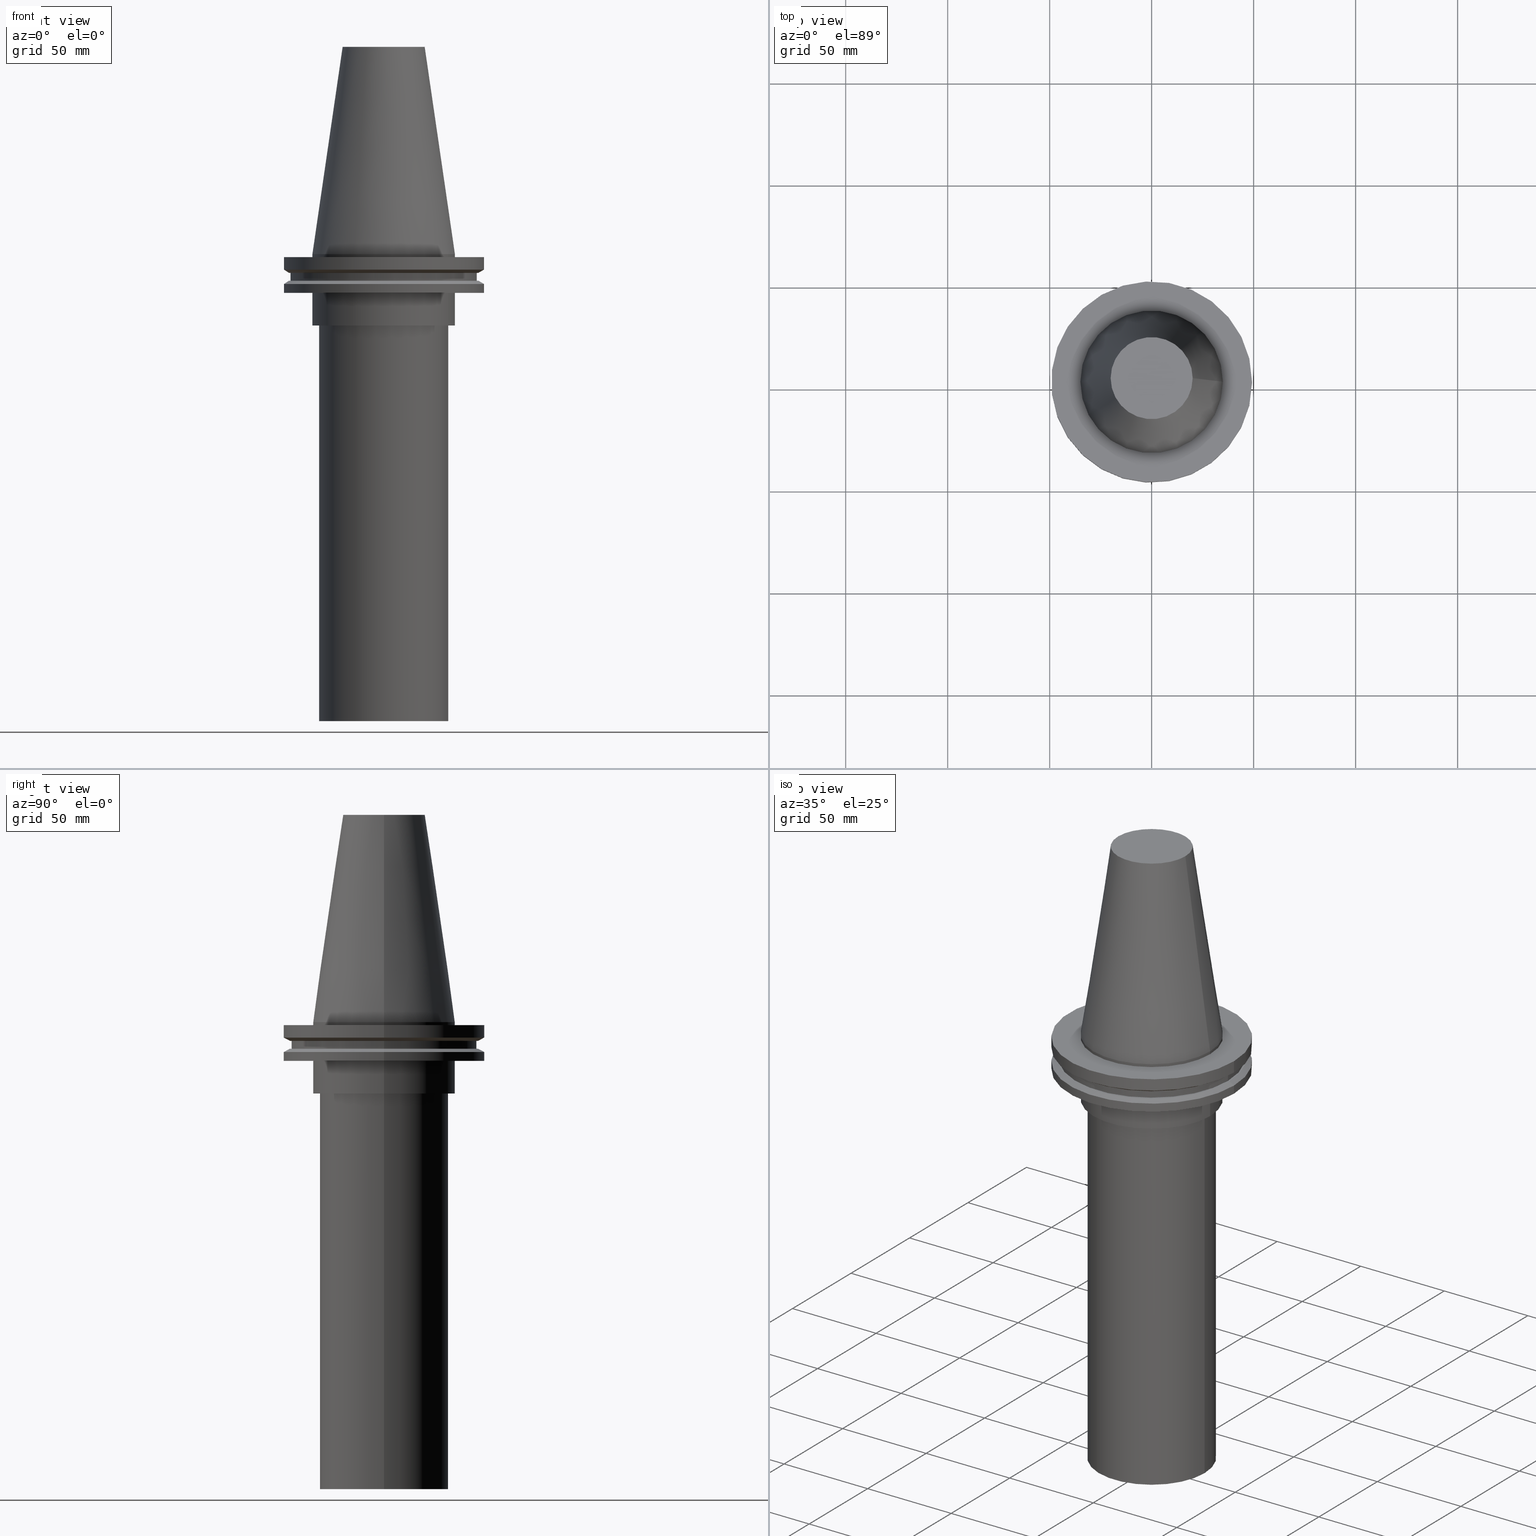
[diagram: canonical four-view strip — front | top / right | iso, engineering-drawing reading convention]
A machine part, canonical four-view strip (front | top / right | iso — engineering-drawing reading convention). The complete STEP part file that produces these views, byte-faithful:
ISO-10303-21;
HEADER;
FILE_DESCRIPTION (( 'STEP AP203' ),
    '1' );
FILE_NAME ('11.326.666.stp',
    '2022-03-09T14:54:01',
    ( '' ),
    ( '' ),
    'SwSTEP 2.0',
    'SolidWorks 2021',
    '' );
FILE_SCHEMA (( 'CONFIG_CONTROL_DESIGN' ));
ENDSEC;

DATA;
#1 = CALENDAR_DATE ( 2022, 9, 3 ) ;
#2 = FACE_OUTER_BOUND ( 'NONE', #136, .T. ) ;
#3 = PLANE ( 'NONE',  #220 ) ;
#4 = DATE_AND_TIME ( #1, #42 ) ;
#5 = VERTEX_POINT ( 'NONE', #182 ) ;
#6 = DIRECTION ( 'NONE',  ( -1.000000000000000000, 0.000000000000000000, -0.000000000000000000 ) ) ;
#7 = CARTESIAN_POINT ( 'NONE',  ( 0.000000000000000000, 0.000000000000000000, -13.05499999999999794 ) ) ;
#8 = VERTEX_POINT ( 'NONE', #242 ) ;
#9 = DIRECTION ( 'NONE',  ( 1.000000000000000000, 0.000000000000000000, 0.000000000000000000 ) ) ;
#10 = FACE_OUTER_BOUND ( 'NONE', #38, .T. ) ;
#11 = ORIENTED_EDGE ( 'NONE', *, *, #85, .F. ) ;
#12 = CIRCLE ( 'NONE', #310, 34.92499999999999005 ) ;
#13 = CARTESIAN_POINT ( 'NONE',  ( 0.000000000000000000, 49.21499999999998920, -19.04999999999999716 ) ) ;
#14 = DIRECTION ( 'NONE',  ( 1.000000000000000000, 0.000000000000000000, 0.000000000000000000 ) ) ;
#15 = FACE_OUTER_BOUND ( 'NONE', #340, .T. ) ;
#16 = ADVANCED_FACE ( 'NONE', ( #148 ), #353, .F. ) ;
#17 = CLOSED_SHELL ( 'NONE', ( #45, #16, #316, #264, #269, #215, #386, #117, #286, #255, #149, #342, #249, #199, #238, #293 ) ) ;
#18 = DIRECTION ( 'NONE',  ( -0.000000000000000000, -0.000000000000000000, 1.000000000000000000 ) ) ;
#19 = FACE_BOUND ( 'NONE', #380, .T. ) ;
#20 = DIRECTION ( 'NONE',  ( -0.000000000000000000, -0.000000000000000000, 1.000000000000000000 ) ) ;
#21 = PLANE ( 'NONE',  #295 ) ;
#22 = UNCERTAINTY_MEASURE_WITH_UNIT (LENGTH_MEASURE( 1.000000000000000082E-05 ), #61, 'distance_accuracy_value', 'NONE');
#23 = AXIS2_PLACEMENT_3D ( 'NONE', #260, #390, #118 ) ;
#24 = EDGE_LOOP ( 'NONE', ( #197 ) ) ;
#25 = EDGE_CURVE ( 'NONE', #292, #292, #99, .T. ) ;
#26 = CARTESIAN_POINT ( 'NONE',  ( 0.000000000000000000, 0.000000000000000000, 101.5999999999999943 ) ) ;
#27 = APPROVAL_STATUS ( 'not_yet_approved' ) ;
#28 = VERTEX_POINT ( 'NONE', #32 ) ;
#29 = CARTESIAN_POINT ( 'NONE',  ( 0.000000000000000000, 0.000000000000000000, -14.65761014474876944 ) ) ;
#30 = CC_DESIGN_PERSON_AND_ORGANIZATION_ASSIGNMENT ( #232, #123, ( #170 ) ) ;
#31 = SECURITY_CLASSIFICATION_LEVEL ( 'unclassified' ) ;
#32 = CARTESIAN_POINT ( 'NONE',  ( 45.64500000000000313, 0.000000000000000000, -9.204999999999991189 ) ) ;
#33 = DIRECTION ( 'NONE',  ( 0.000000000000000000, 0.000000000000000000, -1.000000000000000000 ) ) ;
#34 = CARTESIAN_POINT ( 'NONE',  ( 31.63500000000000512, 0.000000000000000000, -35.00000000000000000 ) ) ;
#35 = APPROVAL_PERSON_ORGANIZATION ( #100, #154, #216 ) ;
#36 = CC_DESIGN_DATE_AND_TIME_ASSIGNMENT ( #4, #235, ( #170 ) ) ;
#37 = CARTESIAN_POINT ( 'NONE',  ( 0.000000000000000000, 0.000000000000000000, -228.9999999999999716 ) ) ;
#38 = EDGE_LOOP ( 'NONE', ( #193 ) ) ;
#39 = DIRECTION ( 'NONE',  ( -0.000000000000000000, -0.000000000000000000, 1.000000000000000000 ) ) ;
#40 = CYLINDRICAL_SURFACE ( 'NONE', #156, 34.92499999999999716 ) ;
#41 = PLANE ( 'NONE',  #166 ) ;
#42 = LOCAL_TIME ( 8, 54, 1.000000000000000000, #157 ) ;
#43 = APPLICATION_PROTOCOL_DEFINITION ( 'international standard', 'config_control_design', 1994, #110 ) ;
#44 = ORIENTED_EDGE ( 'NONE', *, *, #59, .F. ) ;
#45 = ADVANCED_FACE ( 'NONE', ( #86, #208 ), #58, .T. ) ;
#46 = DIRECTION ( 'NONE',  ( -0.000000000000000000, -0.000000000000000000, 1.000000000000000000 ) ) ;
#47 = DIRECTION ( 'NONE',  ( 1.000000000000000000, 0.000000000000000000, 0.000000000000000000 ) ) ;
#48 = PRODUCT ( '11.326.666', '11.326.666', '', ( #140 ) ) ;
#49 = CARTESIAN_POINT ( 'NONE',  ( 0.000000000000000000, 0.000000000000000000, -19.04999999999999716 ) ) ;
#50 = PRODUCT_DEFINITION_FORMATION_WITH_SPECIFIED_SOURCE ( 'ANY', '', #48, .NOT_KNOWN. ) ;
#51 = APPROVAL_STATUS ( 'not_yet_approved' ) ;
#52 = AXIS2_PLACEMENT_3D ( 'NONE', #57, #177, #201 ) ;
#53 = CARTESIAN_POINT ( 'NONE',  ( 0.000000000000000000, 31.63500000000000512, -228.9999999999999716 ) ) ;
#54 = EDGE_LOOP ( 'NONE', ( #167 ) ) ;
#55 = DATE_AND_TIME ( #116, #176 ) ;
#56 = DIRECTION ( 'NONE',  ( 1.000000000000000000, 0.000000000000000000, 0.000000000000000000 ) ) ;
#57 = CARTESIAN_POINT ( 'NONE',  ( 0.000000000000000000, 0.000000000000000000, 0.000000000000000000 ) ) ;
#58 = CONICAL_SURFACE ( 'NONE', #52, 34.92499999999999005, 0.1448138465474119452 ) ;
#59 = EDGE_CURVE ( 'NONE', #371, #371, #302, .T. ) ;
#60 = COORDINATED_UNIVERSAL_TIME_OFFSET ( 6, 0, .BEHIND. ) ;
#61 =( LENGTH_UNIT ( ) NAMED_UNIT ( * ) SI_UNIT ( .MILLI., .METRE. ) );
#62 = DIRECTION ( 'NONE',  ( 1.000000000000000000, 0.000000000000000000, 0.000000000000000000 ) ) ;
#63 = VERTEX_POINT ( 'NONE', #160 ) ;
#64 = CC_DESIGN_PERSON_AND_ORGANIZATION_ASSIGNMENT ( #184, #366, ( #50 ) ) ;
#65 = AXIS2_PLACEMENT_3D ( 'NONE', #383, #376, #343 ) ;
#66 = CALENDAR_DATE ( 2022, 9, 3 ) ;
#67 = DIRECTION ( 'NONE',  ( 1.000000000000000000, 0.000000000000000000, 0.000000000000000000 ) ) ;
#68 = DATE_AND_TIME ( #331, #105 ) ;
#69 = VERTEX_POINT ( 'NONE', #209 ) ;
#70 = CONICAL_SURFACE ( 'NONE', #321, 46.43919780457007818, 1.047197551196575205 ) ;
#71 = EDGE_LOOP ( 'NONE', ( #351 ) ) ;
#72 = FACE_OUTER_BOUND ( 'NONE', #24, .T. ) ;
#73 = ORIENTED_EDGE ( 'NONE', *, *, #25, .F. ) ;
#74 = ORIENTED_EDGE ( 'NONE', *, *, #355, .F. ) ;
#75 = DIRECTION ( 'NONE',  ( 0.000000000000000000, -0.000000000000000000, 1.000000000000000000 ) ) ;
#76 = CIRCLE ( 'NONE', #111, 45.64500000000000313 ) ;
#77 = DIRECTION ( 'NONE',  ( -0.000000000000000000, -0.000000000000000000, 1.000000000000000000 ) ) ;
#78 = DIRECTION ( 'NONE',  ( -0.000000000000000000, -0.000000000000000000, 1.000000000000000000 ) ) ;
#79 = CC_DESIGN_APPROVAL ( #173, ( #170 ) ) ;
#80 = AXIS2_PLACEMENT_3D ( 'NONE', #289, #389, #90 ) ;
#81 = ORIENTED_EDGE ( 'NONE', *, *, #274, .F. ) ;
#82 = DIRECTION ( 'NONE',  ( -0.000000000000000000, -0.000000000000000000, 1.000000000000000000 ) ) ;
#83 = DIRECTION ( 'NONE',  ( 0.000000000000000000, -0.000000000000000000, 1.000000000000000000 ) ) ;
#84 = DIRECTION ( 'NONE',  ( 0.000000000000000000, -0.000000000000000000, 1.000000000000000000 ) ) ;
#85 = EDGE_CURVE ( 'NONE', #88, #88, #89, .T. ) ;
#86 = FACE_BOUND ( 'NONE', #221, .T. ) ;
#87 = PLANE ( 'NONE',  #203 ) ;
#88 = VERTEX_POINT ( 'NONE', #365 ) ;
#89 = CIRCLE ( 'NONE', #254, 34.92499999999999716 ) ;
#90 = DIRECTION ( 'NONE',  ( 1.000000000000000000, 0.000000000000000000, 0.000000000000000000 ) ) ;
#91 = PERSON_AND_ORGANIZATION ( #317, #336 ) ;
#92 = CARTESIAN_POINT ( 'NONE',  ( 34.92499999999999005, 0.000000000000000000, -1.499999999999987566 ) ) ;
#93 = DATE_AND_TIME ( #66, #308 ) ;
#94 = FACE_OUTER_BOUND ( 'NONE', #277, .T. ) ;
#95 = PERSON_AND_ORGANIZATION ( #317, #336 ) ;
#96 = FACE_OUTER_BOUND ( 'NONE', #305, .T. ) ;
#97 = CARTESIAN_POINT ( 'NONE',  ( 0.000000000000000000, 45.64500000000000313, -13.05499999999999794 ) ) ;
#98 =( GEOMETRIC_REPRESENTATION_CONTEXT ( 3 ) GLOBAL_UNCERTAINTY_ASSIGNED_CONTEXT ( ( #22 ) ) GLOBAL_UNIT_ASSIGNED_CONTEXT ( ( #61, #296, #158 ) ) REPRESENTATION_CONTEXT ( 'NONE', 'WORKASPACE' ) );
#99 = CIRCLE ( 'NONE', #23, 20.10819343178871321 ) ;
#100 = PERSON_AND_ORGANIZATION ( #317, #336 ) ;
#101 = DIRECTION ( 'NONE',  ( -0.000000000000000000, -0.000000000000000000, 1.000000000000000000 ) ) ;
#102 = CC_DESIGN_DATE_AND_TIME_ASSIGNMENT ( #297, #290, ( #181 ) ) ;
#103 = DIRECTION ( 'NONE',  ( 1.000000000000000000, 0.000000000000000000, 0.000000000000000000 ) ) ;
#104 = EDGE_LOOP ( 'NONE', ( #108 ) ) ;
#105 = LOCAL_TIME ( 8, 54, 1.000000000000000000, #391 ) ;
#106 = ORIENTED_EDGE ( 'NONE', *, *, #300, .T. ) ;
#107 = CARTESIAN_POINT ( 'NONE',  ( 0.000000000000000000, 0.000000000000000000, 101.5999999999999943 ) ) ;
#108 = ORIENTED_EDGE ( 'NONE', *, *, #324, .T. ) ;
#109 = DIRECTION ( 'NONE',  ( 0.000000000000000000, -0.000000000000000000, 1.000000000000000000 ) ) ;
#110 = APPLICATION_CONTEXT ( 'configuration controlled 3d designs of mechanical parts and assemblies' ) ;
#111 = AXIS2_PLACEMENT_3D ( 'NONE', #349, #46, #9 ) ;
#112 = DIRECTION ( 'NONE',  ( 1.000000000000000000, 0.000000000000000000, 0.000000000000000000 ) ) ;
#113 = ORIENTED_EDGE ( 'NONE', *, *, #145, .F. ) ;
#114 = APPROVAL_PERSON_ORGANIZATION ( #95, #138, #241 ) ;
#115 = CIRCLE ( 'NONE', #281, 31.63500000000000512 ) ;
#116 = CALENDAR_DATE ( 2022, 9, 3 ) ;
#117 = ADVANCED_FACE ( 'NONE', ( #126, #2 ), #237, .F. ) ;
#118 = DIRECTION ( 'NONE',  ( 1.000000000000000000, 0.000000000000000000, 0.000000000000000000 ) ) ;
#119 = PERSON_AND_ORGANIZATION ( #317, #336 ) ;
#120 = CARTESIAN_POINT ( 'NONE',  ( 34.92499999999999716, 0.000000000000000000, -19.04999999999999716 ) ) ;
#121 = DIRECTION ( 'NONE',  ( 1.000000000000000000, 0.000000000000000000, 0.000000000000000000 ) ) ;
#122 = AXIS2_PLACEMENT_3D ( 'NONE', #26, #125, #62 ) ;
#123 = PERSON_AND_ORGANIZATION_ROLE ( 'creator' ) ;
#124 = MANIFOLD_SOLID_BREP ( 'CKB', #17 ) ;
#125 = DIRECTION ( 'NONE',  ( -0.000000000000000000, -0.000000000000000000, 1.000000000000000000 ) ) ;
#126 = FACE_BOUND ( 'NONE', #139, .T. ) ;
#127 = FACE_OUTER_BOUND ( 'NONE', #382, .T. ) ;
#128 = VERTEX_POINT ( 'NONE', #327 ) ;
#129 = CC_DESIGN_SECURITY_CLASSIFICATION ( #181, ( #50 ) ) ;
#130 = DIRECTION ( 'NONE',  ( 0.000000000000000000, 0.000000000000000000, -1.000000000000000000 ) ) ;
#131 = DIRECTION ( 'NONE',  ( -0.000000000000000000, -0.000000000000000000, 1.000000000000000000 ) ) ;
#132 = EDGE_CURVE ( 'NONE', #268, #268, #287, .T. ) ;
#133 = CARTESIAN_POINT ( 'NONE',  ( 0.000000000000000000, 0.000000000000000000, 101.5999999999999943 ) ) ;
#134 = CYLINDRICAL_SURFACE ( 'NONE', #189, 31.63500000000000512 ) ;
#135 = CARTESIAN_POINT ( 'NONE',  ( 0.000000000000000000, 0.000000000000000000, -7.602389855251287187 ) ) ;
#136 = EDGE_LOOP ( 'NONE', ( #344 ) ) ;
#137 = FACE_OUTER_BOUND ( 'NONE', #311, .T. ) ;
#138 = APPROVAL ( #230, 'UNSPECIFIED' ) ;
#139 = EDGE_LOOP ( 'NONE', ( #152 ) ) ;
#140 = MECHANICAL_CONTEXT ( 'NONE', #110, 'mechanical' ) ;
#141 = CYLINDRICAL_SURFACE ( 'NONE', #259, 45.64500000000000313 ) ;
#142 = CARTESIAN_POINT ( 'NONE',  ( 0.000000000000000000, 0.000000000000000000, 0.000000000000000000 ) ) ;
#143 = ORIENTED_EDGE ( 'NONE', *, *, #204, .F. ) ;
#144 = CIRCLE ( 'NONE', #364, 45.64500000000000313 ) ;
#145 = EDGE_CURVE ( 'NONE', #239, #239, #243, .T. ) ;
#146 = CYLINDRICAL_SURFACE ( 'NONE', #393, 49.21499999999998920 ) ;
#147 = DIRECTION ( 'NONE',  ( 1.000000000000000000, 0.000000000000000000, 0.000000000000000000 ) ) ;
#148 = FACE_OUTER_BOUND ( 'NONE', #357, .T. ) ;
#149 = ADVANCED_FACE ( 'NONE', ( #346, #309 ), #70, .T. ) ;
#150 = AXIS2_PLACEMENT_3D ( 'NONE', #217, #246, #194 ) ;
#151 = CARTESIAN_POINT ( 'NONE',  ( 0.000000000000000000, 20.10819343178871321, 101.5999999999999943 ) ) ;
#152 = ORIENTED_EDGE ( 'NONE', *, *, #225, .F. ) ;
#153 = DIRECTION ( 'NONE',  ( -0.000000000000000000, -0.000000000000000000, 1.000000000000000000 ) ) ;
#154 = APPROVAL ( #27, 'UNSPECIFIED' ) ;
#155 = APPROVAL_DATE_TIME ( #68, #154 ) ;
#156 = AXIS2_PLACEMENT_3D ( 'NONE', #381, #315, #307 ) ;
#157 = COORDINATED_UNIVERSAL_TIME_OFFSET ( 6, 0, .BEHIND. ) ;
#158 =( NAMED_UNIT ( * ) SI_UNIT ( $, .STERADIAN. ) SOLID_ANGLE_UNIT ( ) );
#159 = VERTEX_POINT ( 'NONE', #92 ) ;
#160 = CARTESIAN_POINT ( 'NONE',  ( 34.92499999999999005, 0.000000000000000000, 0.000000000000000000 ) ) ;
#161 = EDGE_LOOP ( 'NONE', ( #74 ) ) ;
#162 = FACE_BOUND ( 'NONE', #54, .T. ) ;
#163 = DIRECTION ( 'NONE',  ( 1.000000000000000000, 0.000000000000000000, 0.000000000000000000 ) ) ;
#164 = EDGE_LOOP ( 'NONE', ( #250 ) ) ;
#165 = ORIENTED_EDGE ( 'NONE', *, *, #225, .T. ) ;
#166 = AXIS2_PLACEMENT_3D ( 'NONE', #13, #109, #112 ) ;
#167 = ORIENTED_EDGE ( 'NONE', *, *, #300, .F. ) ;
#168 = FACE_BOUND ( 'NONE', #312, .T. ) ;
#169 = ORIENTED_EDGE ( 'NONE', *, *, #186, .F. ) ;
#170 = PRODUCT_DEFINITION ( 'UNKNOWN', '', #50, #304 ) ;
#171 = EDGE_LOOP ( 'NONE', ( #205 ) ) ;
#172 = COORDINATED_UNIVERSAL_TIME_OFFSET ( 6, 0, .BEHIND. ) ;
#173 = APPROVAL ( #51, 'UNSPECIFIED' ) ;
#174 = ORIENTED_EDGE ( 'NONE', *, *, #211, .T. ) ;
#175 = ORIENTED_EDGE ( 'NONE', *, *, #211, .F. ) ;
#176 = LOCAL_TIME ( 8, 54, 1.000000000000000000, #172 ) ;
#177 = DIRECTION ( 'NONE',  ( 0.000000000000000000, 0.000000000000000000, -1.000000000000000000 ) ) ;
#178 = SHAPE_DEFINITION_REPRESENTATION ( #275, #369 ) ;
#179 = VERTEX_POINT ( 'NONE', #120 ) ;
#180 = CARTESIAN_POINT ( 'NONE',  ( 0.000000000000000000, 0.000000000000000000, 0.000000000000000000 ) ) ;
#181 = SECURITY_CLASSIFICATION ( '', '', #31 ) ;
#182 = CARTESIAN_POINT ( 'NONE',  ( 49.21499999999998920, 0.000000000000000000, -14.65761014474876944 ) ) ;
#183 = AXIS2_PLACEMENT_3D ( 'NONE', #49, #20, #67 ) ;
#184 = PERSON_AND_ORGANIZATION ( #317, #336 ) ;
#185 = DIRECTION ( 'NONE',  ( 1.000000000000000000, 0.000000000000000000, 0.000000000000000000 ) ) ;
#186 = EDGE_CURVE ( 'NONE', #28, #28, #76, .T. ) ;
#187 = CARTESIAN_POINT ( 'NONE',  ( 0.000000000000000000, 0.000000000000000000, -13.05499999999999794 ) ) ;
#188 = CYLINDRICAL_SURFACE ( 'NONE', #387, 34.92499999999999005 ) ;
#189 = AXIS2_PLACEMENT_3D ( 'NONE', #142, #374, #267 ) ;
#190 = ORIENTED_EDGE ( 'NONE', *, *, #145, .T. ) ;
#191 = CIRCLE ( 'NONE', #233, 46.43919780457007818 ) ;
#192 = FACE_OUTER_BOUND ( 'NONE', #303, .T. ) ;
#193 = ORIENTED_EDGE ( 'NONE', *, *, #132, .F. ) ;
#194 = DIRECTION ( 'NONE',  ( 1.000000000000000000, 0.000000000000000000, 0.000000000000000000 ) ) ;
#195 = EDGE_LOOP ( 'NONE', ( #106 ) ) ;
#196 = FACE_OUTER_BOUND ( 'NONE', #288, .T. ) ;
#197 = ORIENTED_EDGE ( 'NONE', *, *, #204, .T. ) ;
#198 = ORIENTED_EDGE ( 'NONE', *, *, #25, .T. ) ;
#199 = ADVANCED_FACE ( 'NONE', ( #192, #334 ), #188, .T. ) ;
#200 = FACE_OUTER_BOUND ( 'NONE', #161, .T. ) ;
#201 = DIRECTION ( 'NONE',  ( -1.000000000000000000, 0.000000000000000000, 0.000000000000000000 ) ) ;
#202 = FACE_OUTER_BOUND ( 'NONE', #377, .T. ) ;
#203 = AXIS2_PLACEMENT_3D ( 'NONE', #53, #84, #362 ) ;
#204 = EDGE_CURVE ( 'NONE', #213, #213, #115, .T. ) ;
#205 = ORIENTED_EDGE ( 'NONE', *, *, #372, .F. ) ;
#206 = APPROVAL_ROLE ( '' ) ;
#207 = FACE_OUTER_BOUND ( 'NONE', #335, .T. ) ;
#208 = FACE_OUTER_BOUND ( 'NONE', #71, .T. ) ;
#209 = CARTESIAN_POINT ( 'NONE',  ( 49.21500000000000341, 0.000000000000000000, -7.602389855251287187 ) ) ;
#210 = AXIS2_PLACEMENT_3D ( 'NONE', #135, #82, #56 ) ;
#211 = EDGE_CURVE ( 'NONE', #69, #69, #301, .T. ) ;
#212 = CALENDAR_DATE ( 2022, 9, 3 ) ;
#213 = VERTEX_POINT ( 'NONE', #299 ) ;
#214 = VERTEX_POINT ( 'NONE', #266 ) ;
#215 = ADVANCED_FACE ( 'NONE', ( #200, #313 ), #146, .T. ) ;
#216 = APPROVAL_ROLE ( '' ) ;
#217 = CARTESIAN_POINT ( 'NONE',  ( 0.000000000000000000, 0.000000000000000000, -35.00000000000000000 ) ) ;
#218 = DIRECTION ( 'NONE',  ( 1.000000000000000000, 0.000000000000000000, 0.000000000000000000 ) ) ;
#219 = ORIENTED_EDGE ( 'NONE', *, *, #274, .T. ) ;
#220 = AXIS2_PLACEMENT_3D ( 'NONE', #265, #130, #234 ) ;
#221 = EDGE_LOOP ( 'NONE', ( #73 ) ) ;
#222 = AXIS2_PLACEMENT_3D ( 'NONE', #236, #298, #326 ) ;
#223 = CARTESIAN_POINT ( 'NONE',  ( 0.000000000000000000, 0.000000000000000000, 0.000000000000000000 ) ) ;
#224 = ORIENTED_EDGE ( 'NONE', *, *, #333, .F. ) ;
#225 = EDGE_CURVE ( 'NONE', #128, #128, #144, .T. ) ;
#226 = ORIENTED_EDGE ( 'NONE', *, *, #324, .F. ) ;
#227 = AXIS2_PLACEMENT_3D ( 'NONE', #97, #33, #6 ) ;
#228 = APPLICATION_PROTOCOL_DEFINITION ( 'international standard', 'config_control_design', 1994, #320 ) ;
#229 = EDGE_LOOP ( 'NONE', ( #273 ) ) ;
#230 = APPROVAL_STATUS ( 'not_yet_approved' ) ;
#231 = CC_DESIGN_PERSON_AND_ORGANIZATION_ASSIGNMENT ( #388, #257, ( #48 ) ) ;
#232 = PERSON_AND_ORGANIZATION ( #317, #336 ) ;
#233 = AXIS2_PLACEMENT_3D ( 'NONE', #187, #153, #330 ) ;
#234 = DIRECTION ( 'NONE',  ( -1.000000000000000000, 0.000000000000000000, -0.000000000000000000 ) ) ;
#235 = DATE_TIME_ROLE ( 'creation_date' ) ;
#236 = CARTESIAN_POINT ( 'NONE',  ( 0.000000000000000000, 0.000000000000000000, -14.65761014474876944 ) ) ;
#237 = PLANE ( 'NONE',  #227 ) ;
#238 = ADVANCED_FACE ( 'NONE', ( #10, #72 ), #134, .T. ) ;
#239 = VERTEX_POINT ( 'NONE', #392 ) ;
#240 = FACE_OUTER_BOUND ( 'NONE', #284, .T. ) ;
#241 = APPROVAL_ROLE ( '' ) ;
#242 = CARTESIAN_POINT ( 'NONE',  ( 46.43919780457007818, 0.000000000000000000, -13.05499999999999794 ) ) ;
#243 = CIRCLE ( 'NONE', #65, 49.21499999999999631 ) ;
#244 = ORIENTED_EDGE ( 'NONE', *, *, #355, .T. ) ;
#245 = CARTESIAN_POINT ( 'NONE',  ( 0.000000000000000000, 0.000000000000000000, 101.5999999999999943 ) ) ;
#246 = DIRECTION ( 'NONE',  ( -0.000000000000000000, -0.000000000000000000, 1.000000000000000000 ) ) ;
#247 = CIRCLE ( 'NONE', #80, 34.92499999999999005 ) ;
#248 = ORIENTED_EDGE ( 'NONE', *, *, #132, .T. ) ;
#249 = ADVANCED_FACE ( 'NONE', ( #162, #127 ), #3, .F. ) ;
#250 = ORIENTED_EDGE ( 'NONE', *, *, #59, .T. ) ;
#251 = CC_DESIGN_APPROVAL ( #154, ( #181 ) ) ;
#252 = EDGE_LOOP ( 'NONE', ( #175 ) ) ;
#253 = DIRECTION ( 'NONE',  ( 1.000000000000000000, 0.000000000000000000, 0.000000000000000000 ) ) ;
#254 = AXIS2_PLACEMENT_3D ( 'NONE', #356, #78, #121 ) ;
#255 = ADVANCED_FACE ( 'NONE', ( #240, #341 ), #352, .F. ) ;
#256 = CARTESIAN_POINT ( 'NONE',  ( 0.000000000000000000, 34.92499999999999716, -35.00000000000000000 ) ) ;
#257 = PERSON_AND_ORGANIZATION_ROLE ( 'design_owner' ) ;
#258 = DIRECTION ( 'NONE',  ( 0.000000000000000000, 0.000000000000000000, -1.000000000000000000 ) ) ;
#259 = AXIS2_PLACEMENT_3D ( 'NONE', #245, #384, #378 ) ;
#260 = CARTESIAN_POINT ( 'NONE',  ( 0.000000000000000000, 0.000000000000000000, 101.5999999999999801 ) ) ;
#261 = APPROVAL_DATE_TIME ( #93, #138 ) ;
#262 = CARTESIAN_POINT ( 'NONE',  ( 20.10819343178871321, 0.000000000000000000, 101.5999999999999801 ) ) ;
#263 = FACE_BOUND ( 'NONE', #171, .T. ) ;
#264 = ADVANCED_FACE ( 'NONE', ( #137, #306 ), #40, .T. ) ;
#265 = CARTESIAN_POINT ( 'NONE',  ( 0.000000000000000000, 49.21499999999999631, -1.499999999999992895 ) ) ;
#266 = CARTESIAN_POINT ( 'NONE',  ( 49.21499999999998920, 0.000000000000000000, -19.04999999999999716 ) ) ;
#267 = DIRECTION ( 'NONE',  ( 1.000000000000000000, 0.000000000000000000, 0.000000000000000000 ) ) ;
#268 = VERTEX_POINT ( 'NONE', #34 ) ;
#269 = ADVANCED_FACE ( 'NONE', ( #196, #168 ), #41, .F. ) ;
#270 = DIRECTION ( 'NONE',  ( 1.000000000000000000, 0.000000000000000000, 0.000000000000000000 ) ) ;
#271 = EDGE_LOOP ( 'NONE', ( #278 ) ) ;
#272 = DIRECTION ( 'NONE',  ( 1.000000000000000000, 0.000000000000000000, 0.000000000000000000 ) ) ;
#273 = ORIENTED_EDGE ( 'NONE', *, *, #186, .T. ) ;
#274 = EDGE_CURVE ( 'NONE', #179, #179, #318, .T. ) ;
#275 = PRODUCT_DEFINITION_SHAPE ( 'NONE', 'NONE',  #170 ) ;
#276 = DIRECTION ( 'NONE',  ( -0.000000000000000000, -0.000000000000000000, 1.000000000000000000 ) ) ;
#277 = EDGE_LOOP ( 'NONE', ( #174 ) ) ;
#278 = ORIENTED_EDGE ( 'NONE', *, *, #85, .T. ) ;
#279 = PRODUCT_RELATED_PRODUCT_CATEGORY ( 'detail', '', ( #48 ) ) ;
#280 = CARTESIAN_POINT ( 'NONE',  ( 0.000000000000000000, 0.000000000000000000, -9.204999999999991189 ) ) ;
#281 = AXIS2_PLACEMENT_3D ( 'NONE', #37, #101, #270 ) ;
#282 = CONICAL_SURFACE ( 'NONE', #222, 49.21499999999998920, 1.047197551196554333 ) ;
#283 = APPROVAL_DATE_TIME ( #55, #173 ) ;
#284 = EDGE_LOOP ( 'NONE', ( #44 ) ) ;
#285 = CC_DESIGN_APPROVAL ( #138, ( #50 ) ) ;
#286 = ADVANCED_FACE ( 'NONE', ( #348, #15 ), #141, .T. ) ;
#287 = CIRCLE ( 'NONE', #150, 31.63500000000000512 ) ;
#288 = EDGE_LOOP ( 'NONE', ( #226 ) ) ;
#289 = CARTESIAN_POINT ( 'NONE',  ( 0.000000000000000000, 0.000000000000000000, -1.499999999999987566 ) ) ;
#290 = DATE_TIME_ROLE ( 'classification_date' ) ;
#291 = DIRECTION ( 'NONE',  ( 1.000000000000000000, 0.000000000000000000, 0.000000000000000000 ) ) ;
#292 = VERTEX_POINT ( 'NONE', #262 ) ;
#293 = ADVANCED_FACE ( 'NONE', ( #202 ), #87, .F. ) ;
#294 = PERSON_AND_ORGANIZATION_ROLE ( 'classification_officer' ) ;
#295 = AXIS2_PLACEMENT_3D ( 'NONE', #256, #83, #314 ) ;
#296 =( NAMED_UNIT ( * ) PLANE_ANGLE_UNIT ( ) SI_UNIT ( $, .RADIAN. ) );
#297 = DATE_AND_TIME ( #212, #328 ) ;
#298 = DIRECTION ( 'NONE',  ( 0.000000000000000000, 0.000000000000000000, -1.000000000000000000 ) ) ;
#299 = CARTESIAN_POINT ( 'NONE',  ( 31.63500000000000512, 0.000000000000000000, -228.9999999999999716 ) ) ;
#300 = EDGE_CURVE ( 'NONE', #159, #159, #247, .T. ) ;
#301 = CIRCLE ( 'NONE', #210, 49.21500000000000341 ) ;
#302 = CIRCLE ( 'NONE', #350, 46.43919780457007818 ) ;
#303 = EDGE_LOOP ( 'NONE', ( #224 ) ) ;
#304 = DESIGN_CONTEXT ( 'detailed design', #320, 'design' ) ;
#305 = EDGE_LOOP ( 'NONE', ( #244 ) ) ;
#306 = FACE_OUTER_BOUND ( 'NONE', #271, .T. ) ;
#307 = DIRECTION ( 'NONE',  ( 1.000000000000000000, 0.000000000000000000, 0.000000000000000000 ) ) ;
#308 = LOCAL_TIME ( 8, 54, 1.000000000000000000, #322 ) ;
#309 = FACE_BOUND ( 'NONE', #164, .T. ) ;
#310 = AXIS2_PLACEMENT_3D ( 'NONE', #180, #332, #185 ) ;
#311 = EDGE_LOOP ( 'NONE', ( #81 ) ) ;
#312 = EDGE_LOOP ( 'NONE', ( #219 ) ) ;
#313 = FACE_OUTER_BOUND ( 'NONE', #104, .T. ) ;
#314 = DIRECTION ( 'NONE',  ( 1.000000000000000000, 0.000000000000000000, 0.000000000000000000 ) ) ;
#315 = DIRECTION ( 'NONE',  ( -0.000000000000000000, -0.000000000000000000, 1.000000000000000000 ) ) ;
#316 = ADVANCED_FACE ( 'NONE', ( #19, #207 ), #21, .F. ) ;
#317 = PERSON ( 'UNSPECIFIED', 'UNSPECIFIED', 'UNSPECIFIED', ('UNSPECIFIED'), ('UNSPECIFIED'), ('UNSPECIFIED') ) ;
#318 = CIRCLE ( 'NONE', #379, 34.92499999999999716 ) ;
#319 = EDGE_LOOP ( 'NONE', ( #113 ) ) ;
#320 = APPLICATION_CONTEXT ( 'configuration controlled 3d designs of mechanical parts and assemblies' ) ;
#321 = AXIS2_PLACEMENT_3D ( 'NONE', #338, #276, #14 ) ;
#322 = COORDINATED_UNIVERSAL_TIME_OFFSET ( 6, 0, .BEHIND. ) ;
#323 = FACE_OUTER_BOUND ( 'NONE', #319, .T. ) ;
#324 = EDGE_CURVE ( 'NONE', #214, #214, #358, .T. ) ;
#325 = PERSON_AND_ORGANIZATION_ROLE ( 'creator' ) ;
#326 = DIRECTION ( 'NONE',  ( -1.000000000000000000, 0.000000000000000000, 0.000000000000000000 ) ) ;
#327 = CARTESIAN_POINT ( 'NONE',  ( 45.64500000000000313, 0.000000000000000000, -13.05499999999999794 ) ) ;
#328 = LOCAL_TIME ( 8, 54, 1.000000000000000000, #60 ) ;
#329 = AXIS2_PLACEMENT_3D ( 'NONE', #345, #75, #253 ) ;
#330 = DIRECTION ( 'NONE',  ( 1.000000000000000000, 0.000000000000000000, 0.000000000000000000 ) ) ;
#331 = CALENDAR_DATE ( 2022, 9, 3 ) ;
#332 = DIRECTION ( 'NONE',  ( -0.000000000000000000, -0.000000000000000000, 1.000000000000000000 ) ) ;
#333 = EDGE_CURVE ( 'NONE', #63, #63, #12, .T. ) ;
#334 = FACE_OUTER_BOUND ( 'NONE', #195, .T. ) ;
#335 = EDGE_LOOP ( 'NONE', ( #11 ) ) ;
#336 = ORGANIZATION ( 'UNSPECIFIED', 'UNSPECIFIED', '' ) ;
#337 = AXIS2_PLACEMENT_3D ( 'NONE', #151, #258, #361 ) ;
#338 = CARTESIAN_POINT ( 'NONE',  ( 0.000000000000000000, 0.000000000000000000, -9.204999999999991189 ) ) ;
#339 = AXIS2_PLACEMENT_3D ( 'NONE', #29, #395, #291 ) ;
#340 = EDGE_LOOP ( 'NONE', ( #165 ) ) ;
#341 = FACE_BOUND ( 'NONE', #229, .T. ) ;
#342 = ADVANCED_FACE ( 'NONE', ( #323, #94 ), #368, .T. ) ;
#343 = DIRECTION ( 'NONE',  ( 1.000000000000000000, 0.000000000000000000, 0.000000000000000000 ) ) ;
#344 = ORIENTED_EDGE ( 'NONE', *, *, #372, .T. ) ;
#345 = CARTESIAN_POINT ( 'NONE',  ( 0.000000000000000000, 46.43919780457007818, -9.204999999999998295 ) ) ;
#346 = FACE_OUTER_BOUND ( 'NONE', #252, .T. ) ;
#347 = EDGE_LOOP ( 'NONE', ( #169 ) ) ;
#348 = FACE_OUTER_BOUND ( 'NONE', #347, .T. ) ;
#349 = CARTESIAN_POINT ( 'NONE',  ( 0.000000000000000000, 0.000000000000000000, -9.204999999999991189 ) ) ;
#350 = AXIS2_PLACEMENT_3D ( 'NONE', #280, #18, #147 ) ;
#351 = ORIENTED_EDGE ( 'NONE', *, *, #333, .T. ) ;
#352 = PLANE ( 'NONE',  #329 ) ;
#353 = PLANE ( 'NONE',  #337 ) ;
#354 = CARTESIAN_POINT ( 'NONE',  ( 0.000000000000000000, 0.000000000000000000, -19.04999999999999716 ) ) ;
#355 = EDGE_CURVE ( 'NONE', #5, #5, #394, .T. ) ;
#356 = CARTESIAN_POINT ( 'NONE',  ( 0.000000000000000000, 0.000000000000000000, -35.00000000000000000 ) ) ;
#357 = EDGE_LOOP ( 'NONE', ( #198 ) ) ;
#358 = CIRCLE ( 'NONE', #183, 49.21499999999998920 ) ;
#359 = PERSON_AND_ORGANIZATION ( #317, #336 ) ;
#360 = CC_DESIGN_PERSON_AND_ORGANIZATION_ASSIGNMENT ( #91, #325, ( #50 ) ) ;
#361 = DIRECTION ( 'NONE',  ( -1.000000000000000000, 0.000000000000000000, -0.000000000000000000 ) ) ;
#362 = DIRECTION ( 'NONE',  ( 1.000000000000000000, 0.000000000000000000, 0.000000000000000000 ) ) ;
#363 = CC_DESIGN_PERSON_AND_ORGANIZATION_ASSIGNMENT ( #119, #294, ( #181 ) ) ;
#364 = AXIS2_PLACEMENT_3D ( 'NONE', #7, #131, #218 ) ;
#365 = CARTESIAN_POINT ( 'NONE',  ( 34.92499999999999716, 0.000000000000000000, -35.00000000000000000 ) ) ;
#366 = PERSON_AND_ORGANIZATION_ROLE ( 'design_supplier' ) ;
#367 = CARTESIAN_POINT ( 'NONE',  ( 46.43919780457007818, 0.000000000000000000, -9.204999999999991189 ) ) ;
#368 = CYLINDRICAL_SURFACE ( 'NONE', #122, 49.21499999999999631 ) ;
#369 = ADVANCED_BREP_SHAPE_REPRESENTATION ( '11.326.666', ( #124, #385 ), #98 ) ;
#370 = APPROVAL_PERSON_ORGANIZATION ( #359, #173, #206 ) ;
#371 = VERTEX_POINT ( 'NONE', #367 ) ;
#372 = EDGE_CURVE ( 'NONE', #8, #8, #191, .T. ) ;
#373 = DIRECTION ( 'NONE',  ( -0.000000000000000000, -0.000000000000000000, 1.000000000000000000 ) ) ;
#374 = DIRECTION ( 'NONE',  ( -0.000000000000000000, -0.000000000000000000, 1.000000000000000000 ) ) ;
#375 = DIRECTION ( 'NONE',  ( 0.000000000000000000, 0.000000000000000000, 1.000000000000000000 ) ) ;
#376 = DIRECTION ( 'NONE',  ( -0.000000000000000000, -0.000000000000000000, 1.000000000000000000 ) ) ;
#377 = EDGE_LOOP ( 'NONE', ( #143 ) ) ;
#378 = DIRECTION ( 'NONE',  ( 1.000000000000000000, 0.000000000000000000, 0.000000000000000000 ) ) ;
#379 = AXIS2_PLACEMENT_3D ( 'NONE', #354, #77, #47 ) ;
#380 = EDGE_LOOP ( 'NONE', ( #248 ) ) ;
#381 = CARTESIAN_POINT ( 'NONE',  ( 0.000000000000000000, 0.000000000000000000, 101.5999999999999943 ) ) ;
#382 = EDGE_LOOP ( 'NONE', ( #190 ) ) ;
#383 = CARTESIAN_POINT ( 'NONE',  ( 0.000000000000000000, 0.000000000000000000, -1.499999999999987566 ) ) ;
#384 = DIRECTION ( 'NONE',  ( -0.000000000000000000, -0.000000000000000000, 1.000000000000000000 ) ) ;
#385 = AXIS2_PLACEMENT_3D ( 'NONE', #223, #375, #103 ) ;
#386 = ADVANCED_FACE ( 'NONE', ( #263, #96 ), #282, .T. ) ;
#387 = AXIS2_PLACEMENT_3D ( 'NONE', #133, #373, #163 ) ;
#388 = PERSON_AND_ORGANIZATION ( #317, #336 ) ;
#389 = DIRECTION ( 'NONE',  ( -0.000000000000000000, -0.000000000000000000, 1.000000000000000000 ) ) ;
#390 = DIRECTION ( 'NONE',  ( -0.000000000000000000, -0.000000000000000000, 1.000000000000000000 ) ) ;
#391 = COORDINATED_UNIVERSAL_TIME_OFFSET ( 6, 0, .BEHIND. ) ;
#392 = CARTESIAN_POINT ( 'NONE',  ( 49.21499999999999631, 0.000000000000000000, -1.499999999999987566 ) ) ;
#393 = AXIS2_PLACEMENT_3D ( 'NONE', #107, #39, #272 ) ;
#394 = CIRCLE ( 'NONE', #339, 49.21499999999998920 ) ;
#395 = DIRECTION ( 'NONE',  ( -0.000000000000000000, -0.000000000000000000, 1.000000000000000000 ) ) ;
ENDSEC;
END-ISO-10303-21;
